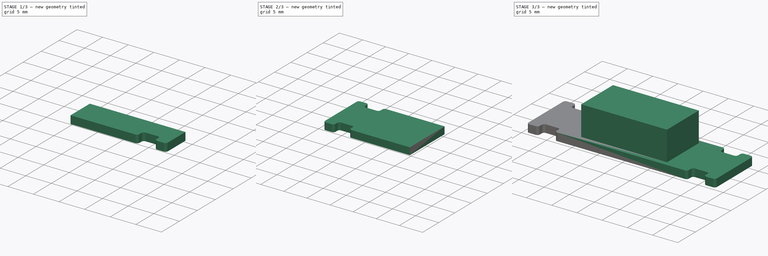
[diagram: build sequence overview — one tinted view per stage of 3, left to right]
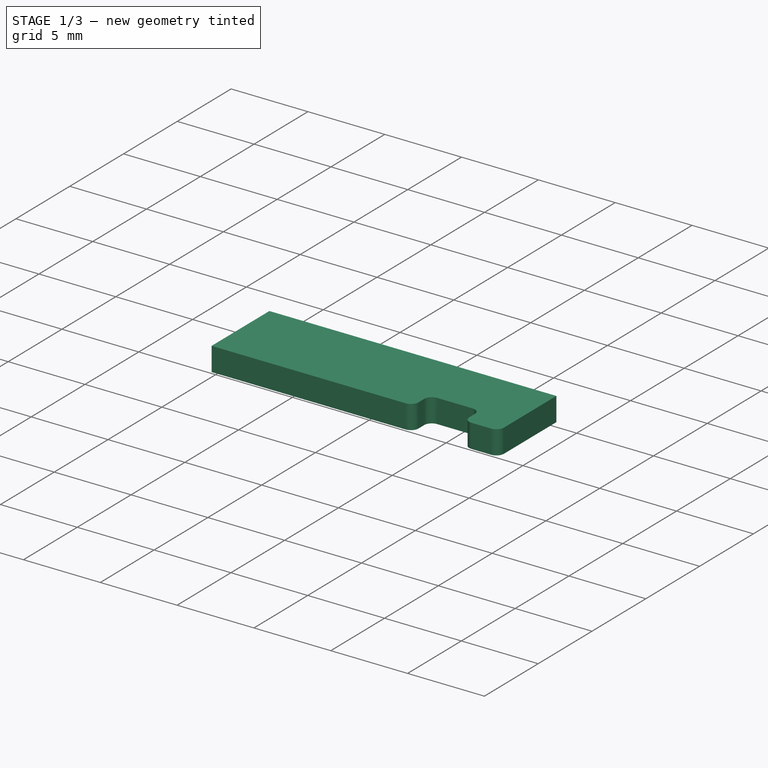
[diagram: stage 1 of 3 — iso view after this stage's code; geometry added in this stage tinted green]
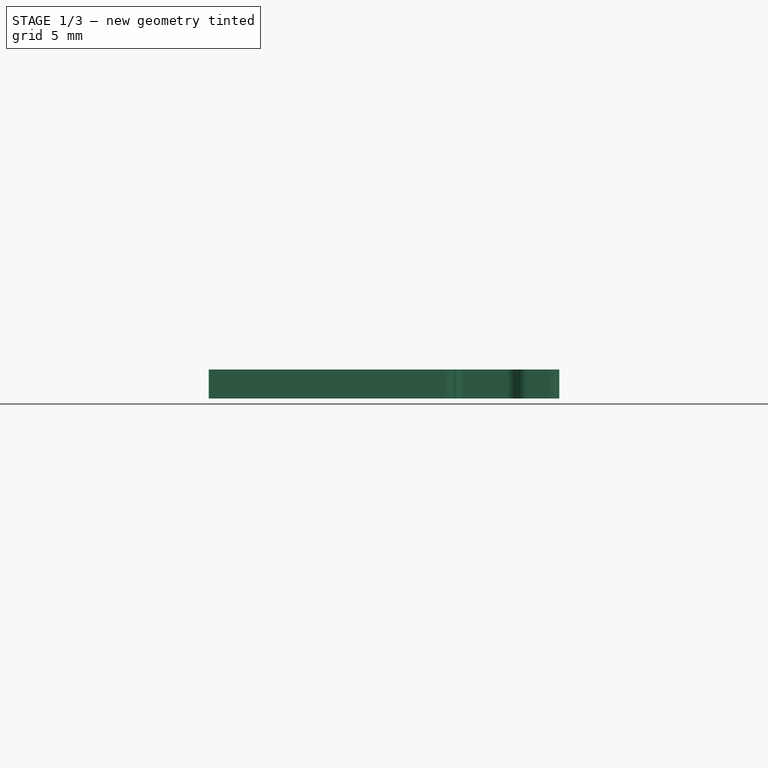
[diagram: stage 1 of 3 — front view after this stage's code; geometry added in this stage tinted green]
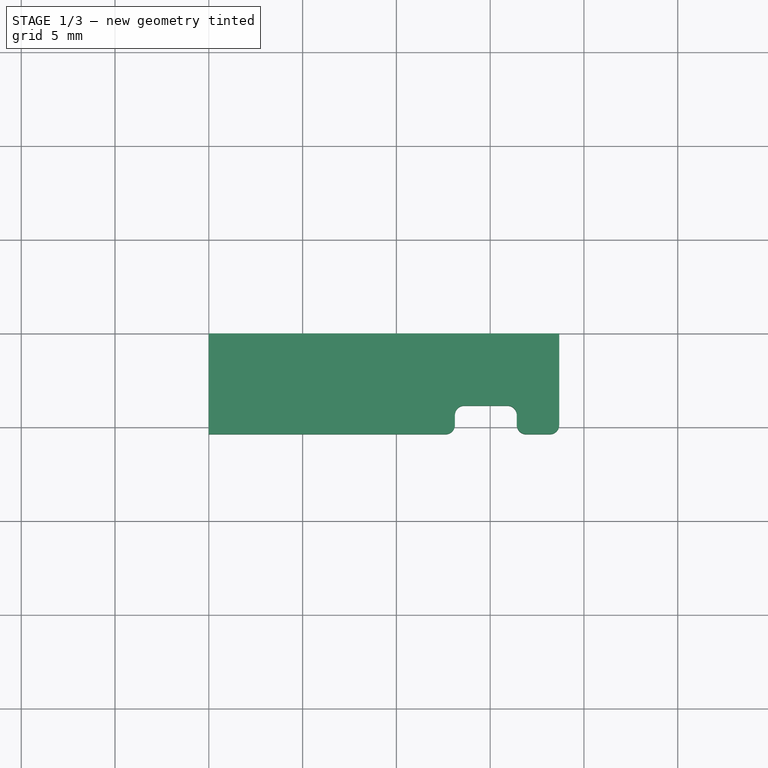
[diagram: stage 1 of 3 — top view after this stage's code; geometry added in this stage tinted green]
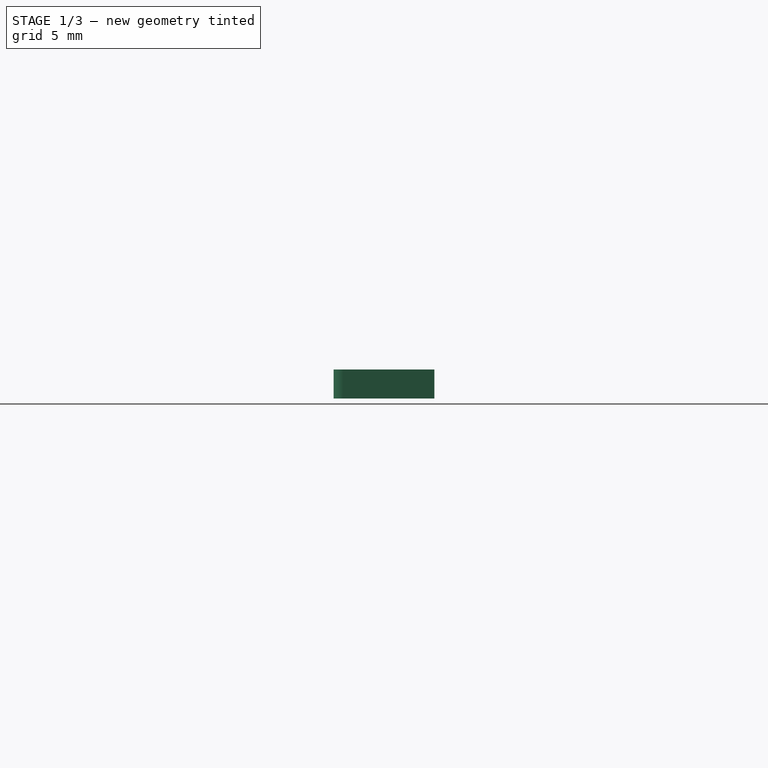
[diagram: stage 1 of 3 — right view after this stage's code; geometry added in this stage tinted green]
FCSTD DOCUMENT  (FreeCAD 0.16RUnknown)
Label: FemtoBuck
License: All rights reserved
LicenseURL: http://en.wikipedia.org/wiki/All_rights_reserved
objects: Sketcher::SketchObject×2, PartDesign::Pad×2, Part::Mirroring×2, Part::MultiFuse×2, Part::Fillet×1, Part::FeaturePython×1
note: 12 computed .brp shape members not serialized (recipe doc carries the construction recipe); baked Part::Feature solids carry a one-line shape summary decoded from their .brp

FEATURE [Sketcher::SketchObject] Sketch  label="Base"
  sketch-geometry (8):
    g0: LineSegment StartX=0 StartY=5.37 StartZ=0 EndX=13.12 EndY=5.37 EndZ=0
    g1: LineSegment StartX=13.12 StartY=5.37 StartZ=0 EndX=13.12 EndY=3.85 EndZ=0
    g2: LineSegment StartX=13.12 StartY=3.85 StartZ=0 EndX=16.42 EndY=3.85 EndZ=0
    g3: LineSegment StartX=16.42 StartY=3.85 StartZ=0 EndX=16.42 EndY=5.37 EndZ=0
    g4: LineSegment StartX=16.42 StartY=5.37 StartZ=0 EndX=18.68 EndY=5.37 EndZ=0
    g5: LineSegment StartX=18.68 StartY=5.37 StartZ=0 EndX=18.68 EndY=0 EndZ=0
    g6: LineSegment StartX=18.68 StartY=0 StartZ=0 EndX=0 EndY=0 EndZ=0
    g7: LineSegment StartX=0 StartY=0 StartZ=0 EndX=0 EndY=5.37 EndZ=0
  constraints (23):
    c: Coincident(g0,g1)
    c: Coincident(g1,g2)
    c: Coincident(g2,g3)
    c: Coincident(g3,g4)
    c: Coincident(g4,g5)
    c: Coincident(g5,g6)
    c: Coincident(g6,g7)
    c: Coincident(g7,g0)
    c: Coincident(g6,g-1)
    c: Vertical(g7)
    c: Horizontal(g6)
    c: Horizontal(g0)
    c: Horizontal(g2)
    c: Horizontal(g4)
    c: Vertical(g5)
    c: PointOnObject(g3,g0)
    c: DistanceY(g7,g7) = 5.37
    c: DistanceY(g1) = 3.85
    c: DistanceX(g6,g6) = 18.68
    c: Vertical(g1)
    c: Vertical(g3)
    c: DistanceX(g2,g2) = 3.3
    c: DistanceX(g1) = 13.12
FEATURE [PartDesign::Pad] Pad  label="Base001"
  Length = 1.54
  Length2 = 100
  Sketch = -> Sketch
  Type = 0
FEATURE [Part::Fillet] Fillet
  Base = -> Pad
  Edges = 5 edges r=0.5: [Edge2,Edge5,Edge8,Edge11,Edge14]
FEATURE [Part::Mirroring] Part__Mirroring  label="Fillet (Mirror #1)"
  Base = (0,0,0)
  Normal = (0,1,0)
  Source = -> Fillet
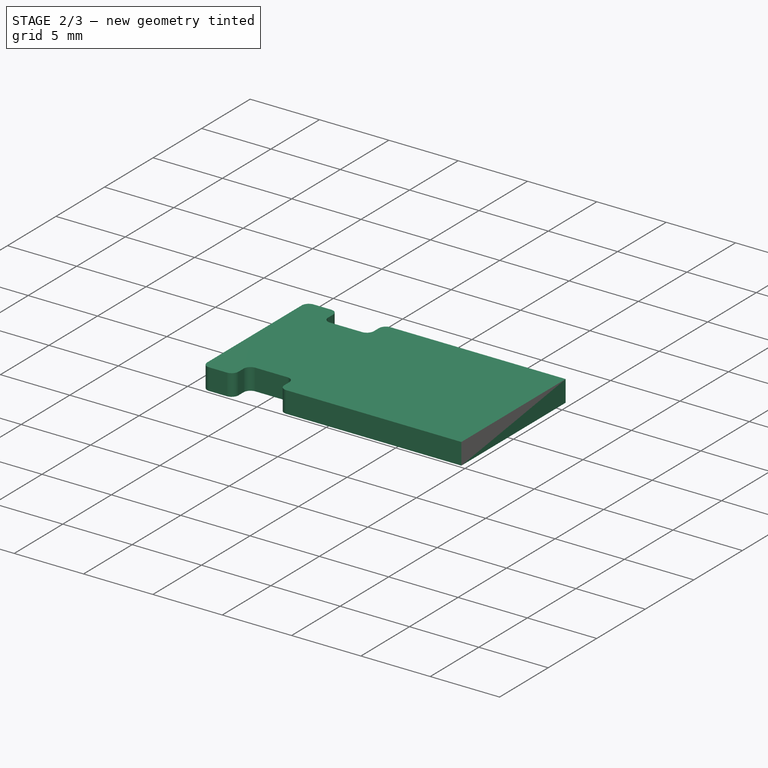
[diagram: stage 2 of 3 — iso view after this stage's code; geometry added in this stage tinted green]
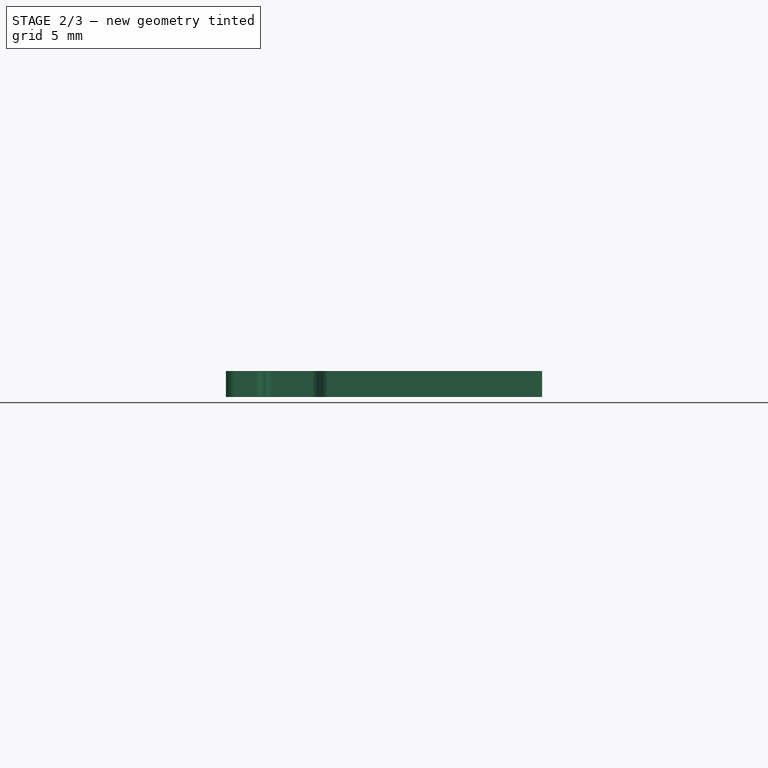
[diagram: stage 2 of 3 — front view after this stage's code; geometry added in this stage tinted green]
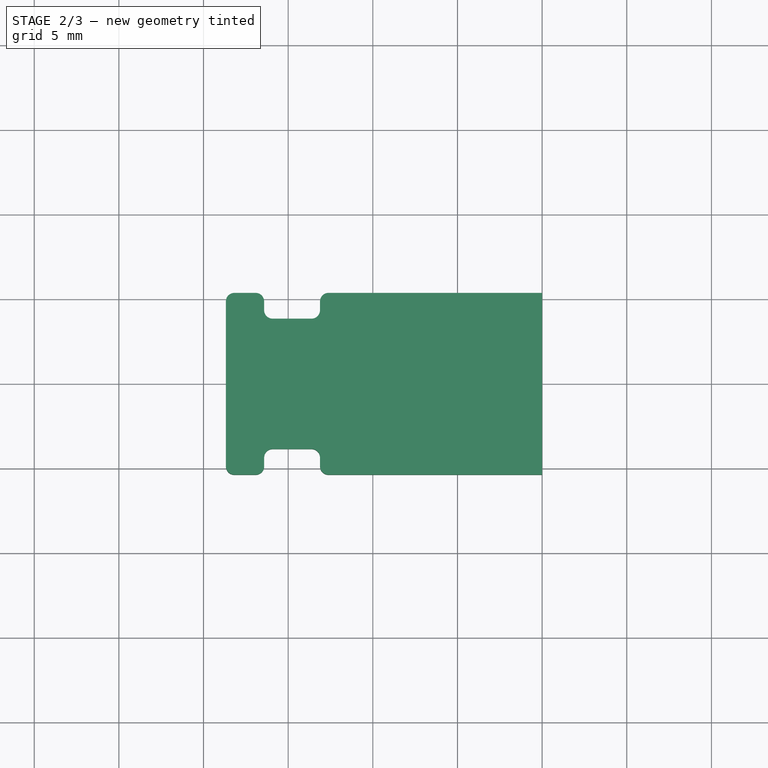
[diagram: stage 2 of 3 — top view after this stage's code; geometry added in this stage tinted green]
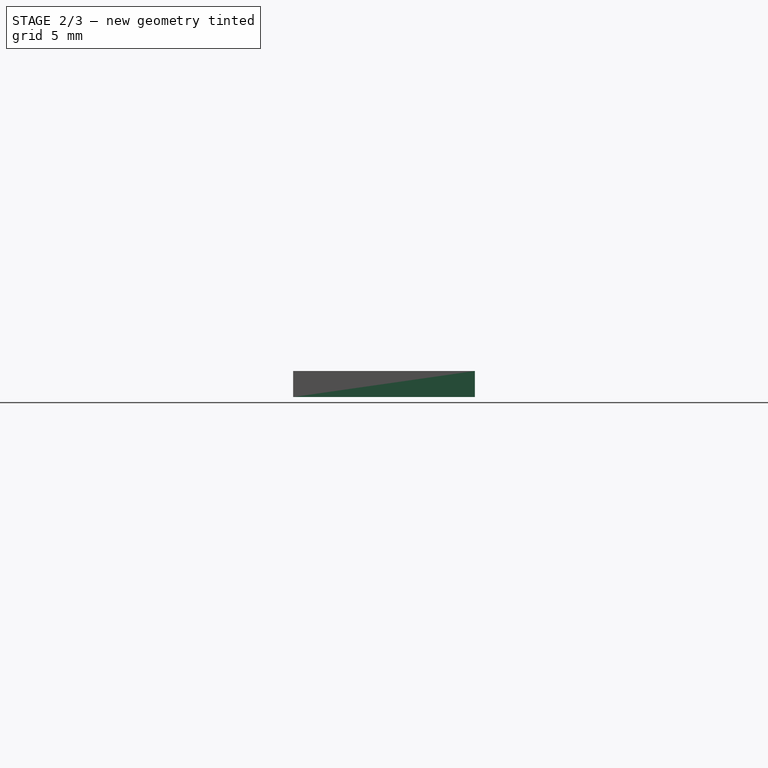
[diagram: stage 2 of 3 — right view after this stage's code; geometry added in this stage tinted green]
FEATURE [Part::MultiFuse] Fusion
  Shapes = -> [Fillet,Part__Mirroring]
FEATURE [Part::Mirroring] Part__Mirroring001  label="Fusion (Mirror #2)"
  Base = (0,0,0)
  Normal = (1,0,0)
  Source = -> Fusion
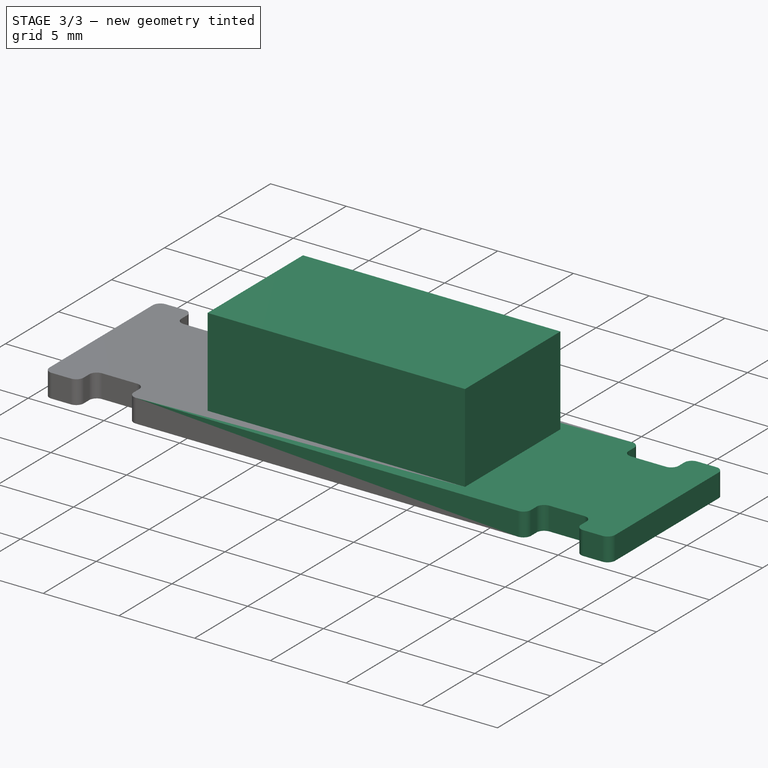
[diagram: stage 3 of 3 — iso view after this stage's code; geometry added in this stage tinted green]
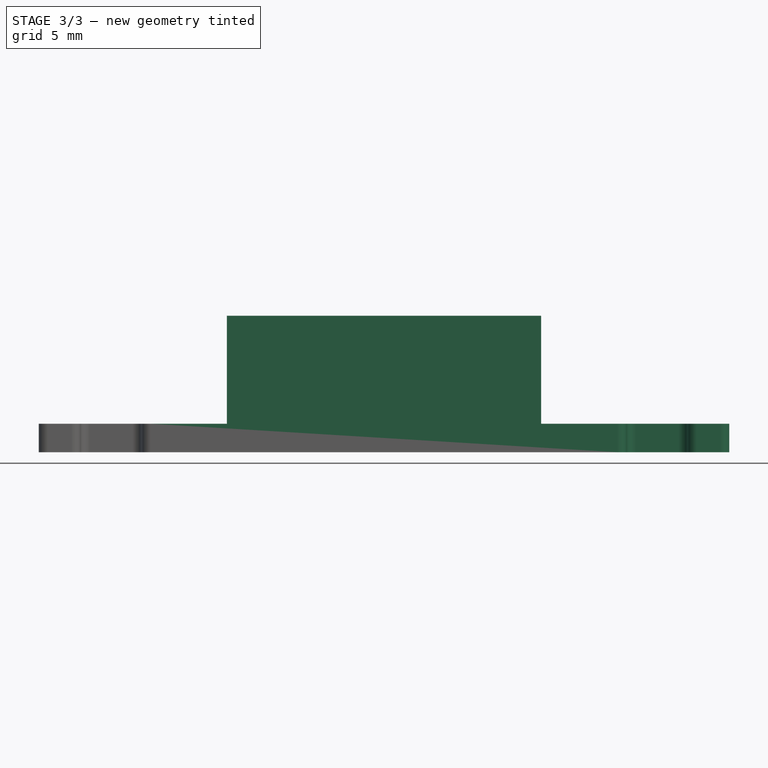
[diagram: stage 3 of 3 — front view after this stage's code; geometry added in this stage tinted green]
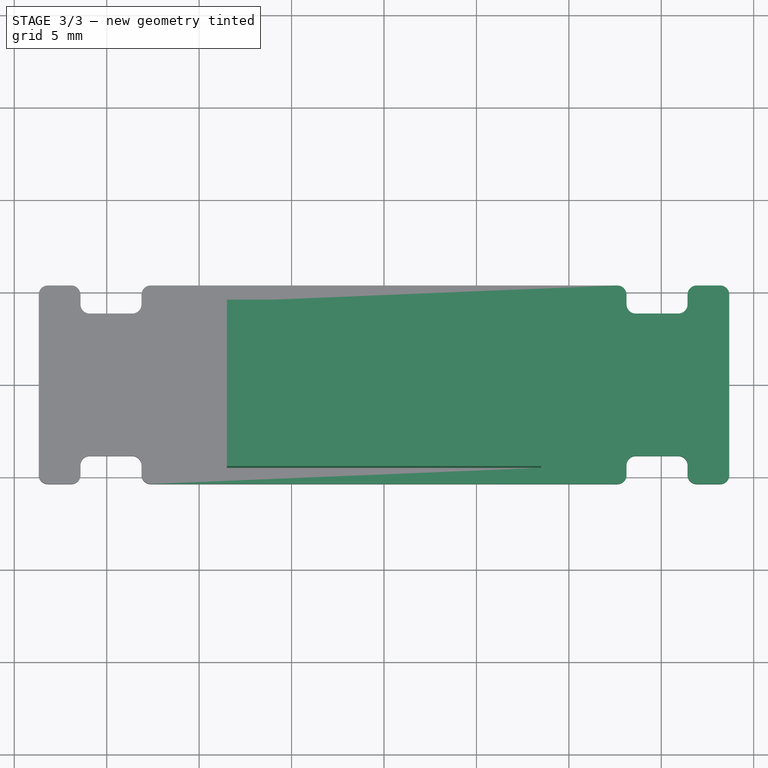
[diagram: stage 3 of 3 — top view after this stage's code; geometry added in this stage tinted green]
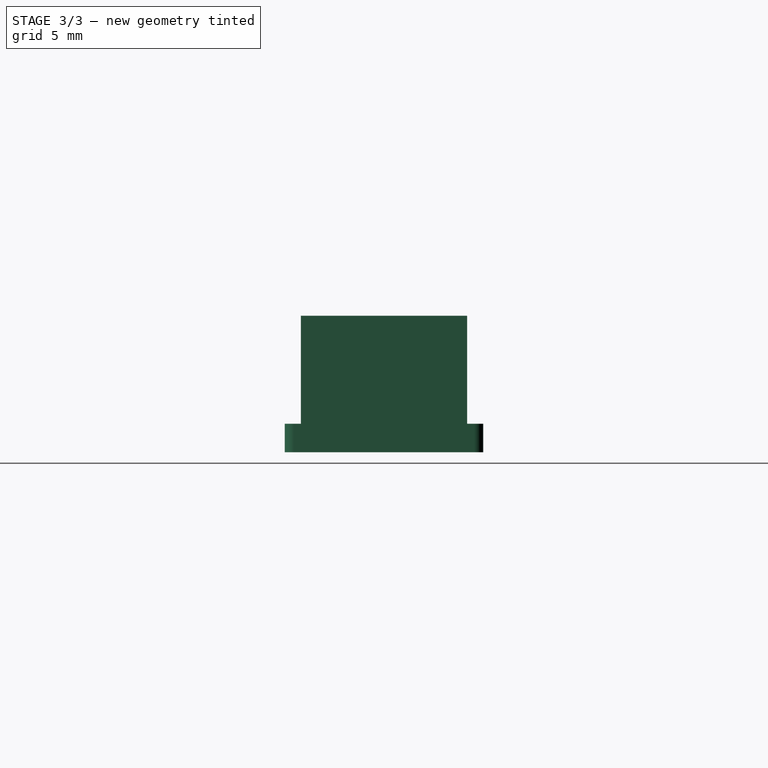
[diagram: stage 3 of 3 — right view after this stage's code; geometry added in this stage tinted green]
FEATURE [Part::MultiFuse] Fusion001  label="Board"
  Shapes = -> [Fusion,Part__Mirroring001]
FEATURE [Sketcher::SketchObject] Sketch001  label="ComponentBoundaries"
  Placement = pos=(0,0,1.54) rot=(0,0,1;0rad)
  Support = -> Fusion001 [Face41]
  sketch-geometry (5):
    g0: LineSegment StartX=-8.5 StartY=4.5 StartZ=0 EndX=8.5 EndY=4.5 EndZ=0
    g1: LineSegment StartX=8.5 StartY=4.5 StartZ=0 EndX=8.5 EndY=-4.5 EndZ=0
    g2: LineSegment StartX=8.5 StartY=-4.5 StartZ=0 EndX=-8.5 EndY=-4.5 EndZ=0
    g3: LineSegment StartX=-8.5 StartY=-4.5 StartZ=0 EndX=-8.5 EndY=4.5 EndZ=0
    g4: GeomPoint [constr] X=0 Y=0 Z=0
  constraints (12):
    c: Coincident(g0,g1)
    c: Coincident(g1,g2)
    c: Coincident(g2,g3)
    c: Coincident(g3,g0)
    c: Horizontal(g0)
    c: Horizontal(g2)
    c: Vertical(g1)
    c: Vertical(g3)
    c: Symmetric(g0,g1,g4)
    c: Coincident(g4,g-1)
    c: DistanceX(g0,g0) = 17
    c: DistanceY(g1,g1) = 9
FEATURE [PartDesign::Pad] Pad001  label="ComponentBoundaries001"
  Length = 5.84
  Length2 = 100
  Sketch = -> Sketch001
  Type = 0
FEATURE [Part::FeaturePython] Clone  label="FemtoBuck"  # Draft clone (typed FeaturePython)
  Objects = -> [Pad001]
  Scale = (1,1,1)
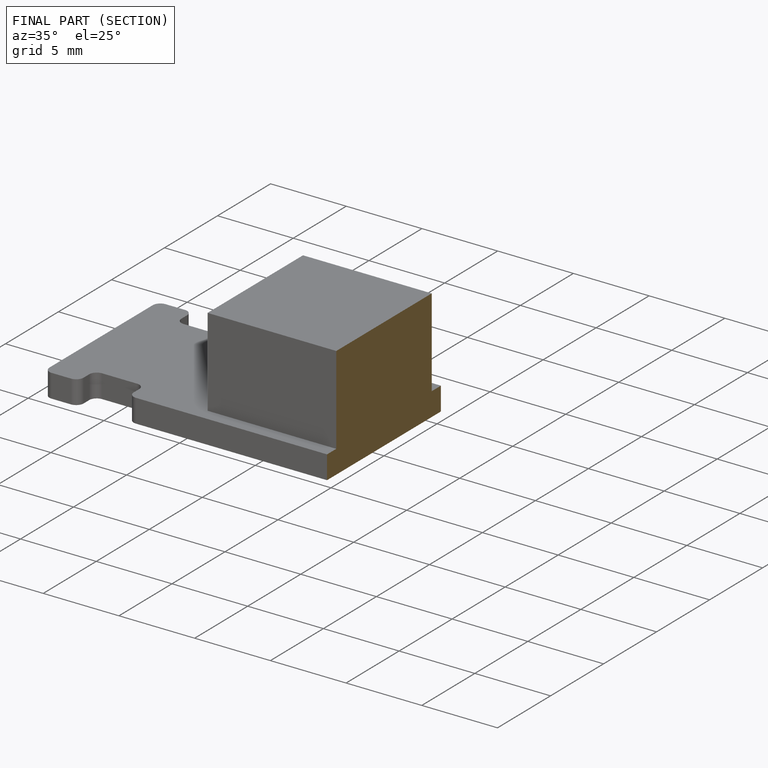
[diagram: finished part — half-section view (interior)]
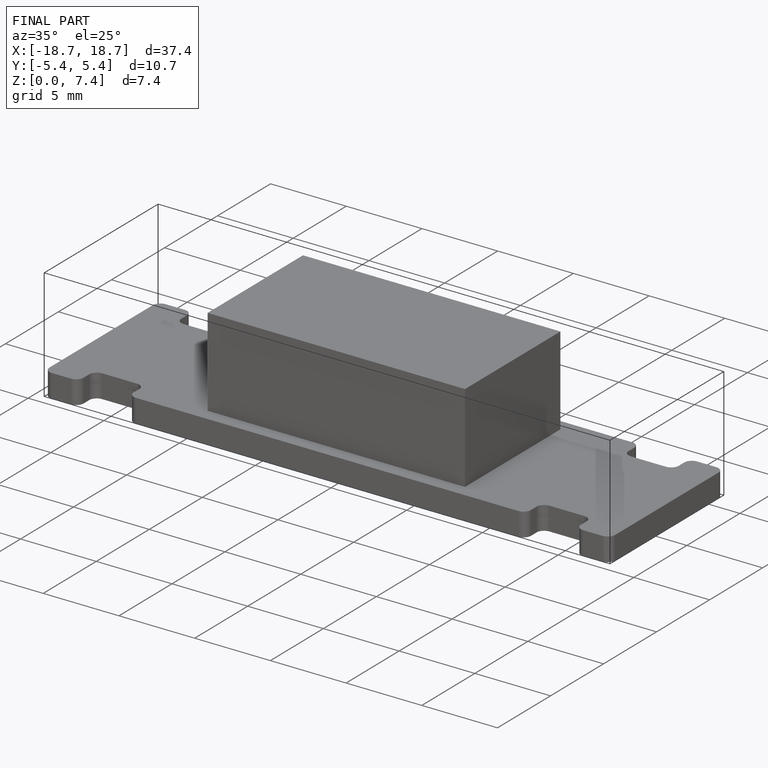
[diagram: finished part — iso view with bounding-box wireframe]
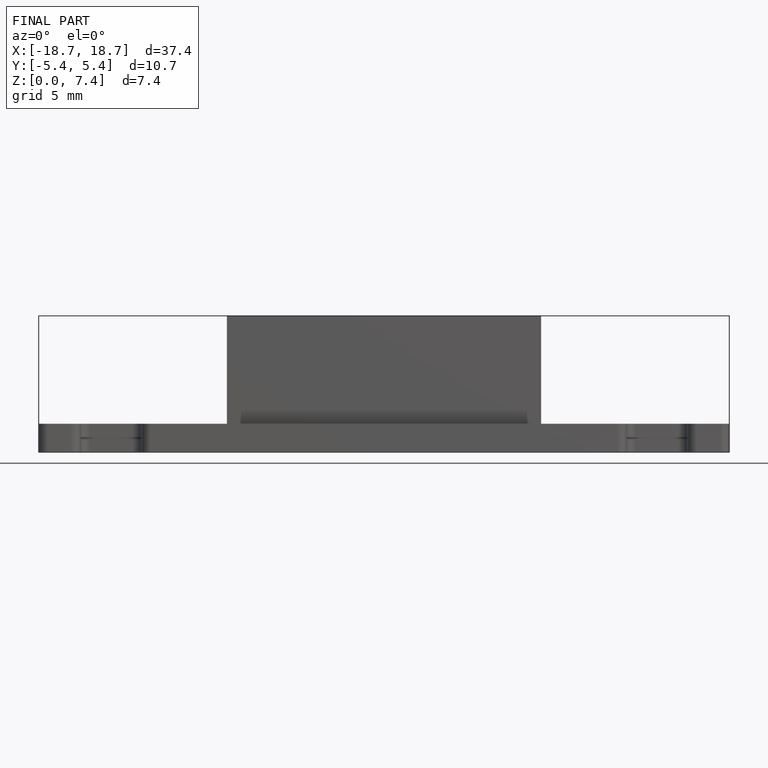
[diagram: finished part — front view with bounding-box wireframe]
